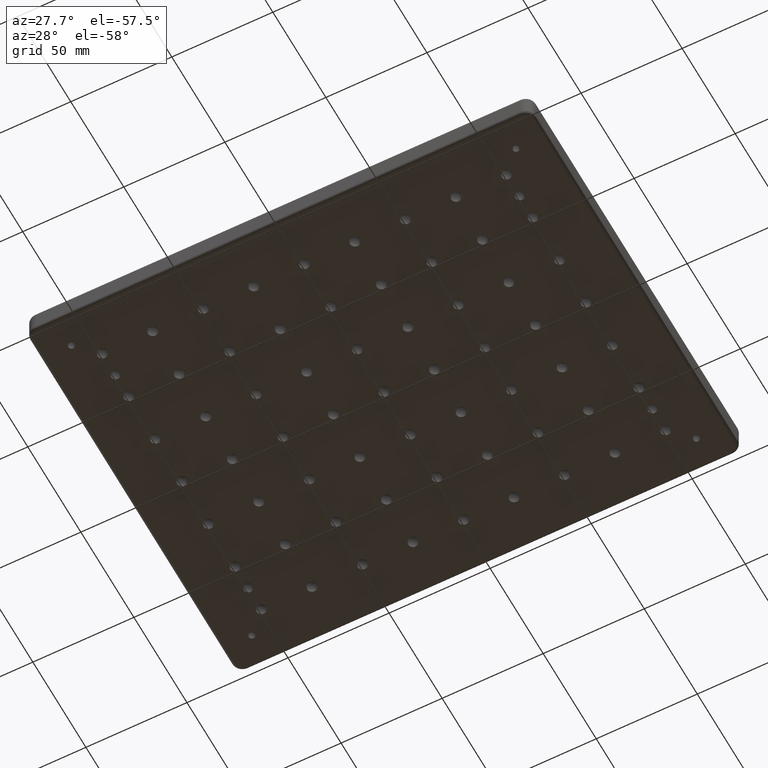
[diagram: clean part render]
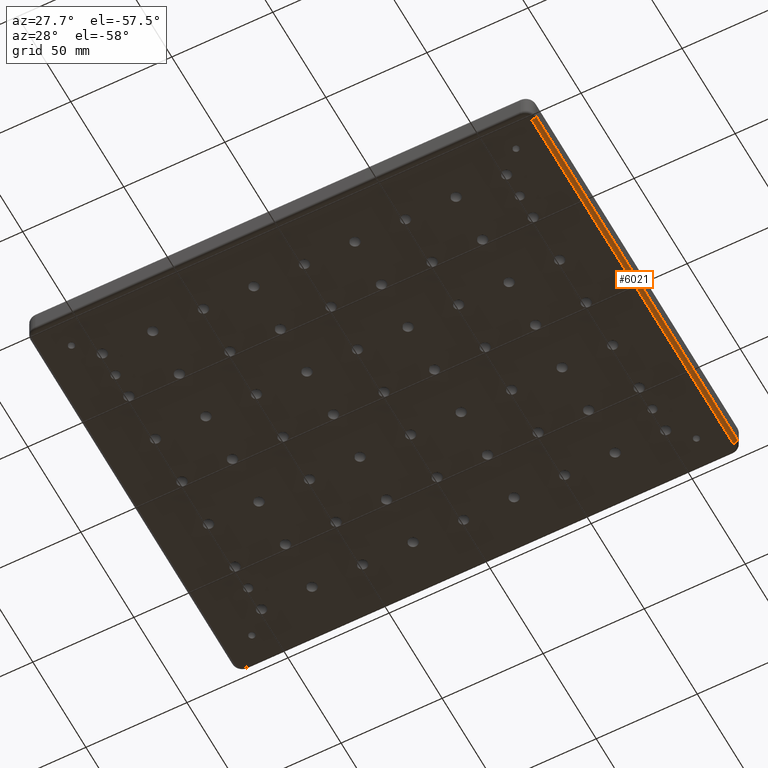
[diagram: same view with one face highlighted and labeled with its STEP entity id]
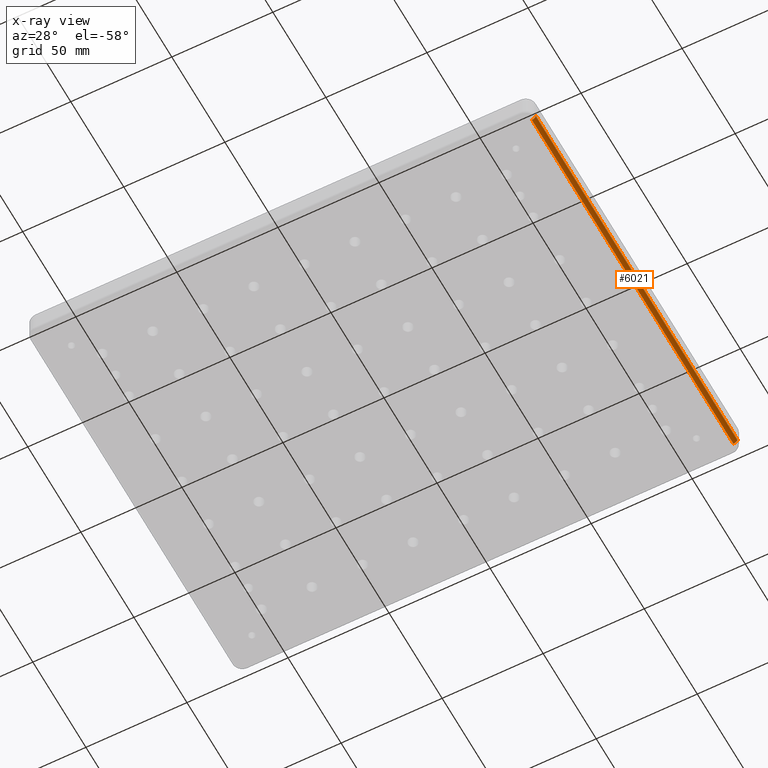
[diagram: x-ray of the same camera — body ghosted, the highlighted face saturated]
A machine part, auxiliary view. The second image highlights one B-rep face of the part: STEP entity #6021.
The next image is the same camera in x-ray: the body ghosted, the highlighted face saturated — about 0% of this face is hidden behind the body in this view.
In plain terms, the highlighted cylindrical surface (edge-blend (fillet) strip) has radius 2 mm, axis along (-0, 1, 0).
Its self-contained STEP definition (entity closure, byte-faithful):
#48 = DIRECTION ( 'NONE',  ( 0.000000000000000000, 0.000000000000000000, 1.000000000000000000 ) ) ;
#179 = DIRECTION ( 'NONE',  ( -0.000000000000000000, 1.000000000000000000, 0.000000000000000000 ) ) ;
#357 = ORIENTED_EDGE ( 'NONE', *, *, #1266, .F. ) ;
#500 = CARTESIAN_POINT ( 'NONE',  ( 123.0000000000000568, -95.00000000000008527, -11.00000000000000000 ) ) ;
#652 = CARTESIAN_POINT ( 'NONE',  ( 125.0000000000000000, 95.00000000000014211, -11.00000000000000000 ) ) ;
#668 = EDGE_LOOP ( 'NONE', ( #3175, #357, #1270, #1432 ) ) ;
#902 = LINE ( 'NONE', #4820, #4754 ) ;
#923 = DIRECTION ( 'NONE',  ( -0.000000000000000000, 1.000000000000000000, 0.000000000000000000 ) ) ;
#1090 = EDGE_CURVE ( 'NONE', #4447, #3560, #902, .T. ) ;
#1266 = EDGE_CURVE ( 'NONE', #5635, #3843, #5398, .T. ) ;
#1267 = CARTESIAN_POINT ( 'NONE',  ( 123.0000000000000000, 95.00000000000014211, -13.00000000000000000 ) ) ;
#1270 = ORIENTED_EDGE ( 'NONE', *, *, #1594, .F. ) ;
#1432 = ORIENTED_EDGE ( 'NONE', *, *, #1090, .F. ) ;
#1594 = EDGE_CURVE ( 'NONE', #3560, #5635, #4549, .T. ) ;
#1886 = VECTOR ( 'NONE', #6355, 1000.000000000000000 ) ;
#1894 = CARTESIAN_POINT ( 'NONE',  ( 123.0000000000000000, 95.00000000000014211, -11.00000000000000000 ) ) ;
#2030 = AXIS2_PLACEMENT_3D ( 'NONE', #5538, #179, #48 ) ;
#2293 = AXIS2_PLACEMENT_3D ( 'NONE', #1894, #923, #4750 ) ;
#2399 = DIRECTION ( 'NONE',  ( -2.921639538487251303E-16, 1.000000000000000000, 0.000000000000000000 ) ) ;
#2771 = DIRECTION ( 'NONE',  ( -2.921639538487251303E-16, 1.000000000000000000, 0.000000000000000000 ) ) ;
#2846 = CIRCLE ( 'NONE', #2030, 2.000000000000000000 ) ;
#2952 = CYLINDRICAL_SURFACE ( 'NONE', #4419, 2.000000000000001776 ) ;
#3175 = ORIENTED_EDGE ( 'NONE', *, *, #3585, .T. ) ;
#3560 = VERTEX_POINT ( 'NONE', #652 ) ;
#3585 = EDGE_CURVE ( 'NONE', #4447, #3843, #2846, .T. ) ;
#3843 = VERTEX_POINT ( 'NONE', #3899 ) ;
#3899 = CARTESIAN_POINT ( 'NONE',  ( 123.0000000000000853, -95.00000000000008527, -13.00000000000000000 ) ) ;
#4419 = AXIS2_PLACEMENT_3D ( 'NONE', #500, #2399, #4423 ) ;
#4423 = DIRECTION ( 'NONE',  ( -1.000000000000000000, 0.000000000000000000, 0.000000000000000000 ) ) ;
#4431 = CARTESIAN_POINT ( 'NONE',  ( 123.0000000000000000, 95.00000000000018474, -13.00000000000000000 ) ) ;
#4447 = VERTEX_POINT ( 'NONE', #4555 ) ;
#4549 = CIRCLE ( 'NONE', #2293, 2.000000000000000000 ) ;
#4555 = CARTESIAN_POINT ( 'NONE',  ( 125.0000000000000853, -95.00000000000008527, -11.00000000000000000 ) ) ;
#4750 = DIRECTION ( 'NONE',  ( 0.000000000000000000, 0.000000000000000000, 1.000000000000000000 ) ) ;
#4754 = VECTOR ( 'NONE', #2771, 1000.000000000000000 ) ;
#4820 = CARTESIAN_POINT ( 'NONE',  ( 125.0000000000000568, -95.00000000000008527, -11.00000000000000000 ) ) ;
#4911 = FACE_OUTER_BOUND ( 'NONE', #668, .T. ) ;
#5398 = LINE ( 'NONE', #4431, #1886 ) ;
#5538 = CARTESIAN_POINT ( 'NONE',  ( 123.0000000000000853, -95.00000000000008527, -11.00000000000000000 ) ) ;
#5635 = VERTEX_POINT ( 'NONE', #1267 ) ;
#6021 = ADVANCED_FACE ( 'NONE', ( #4911 ), #2952, .T. ) ;
#6355 = DIRECTION ( 'NONE',  ( 2.921639538487251303E-16, -1.000000000000000000, -0.000000000000000000 ) ) ;